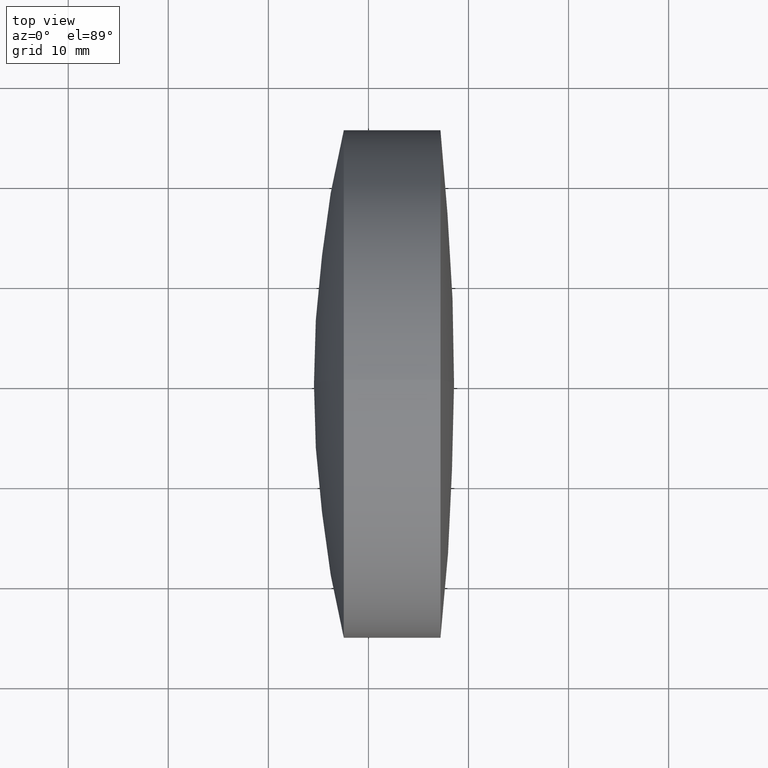
[diagram: clean part render]
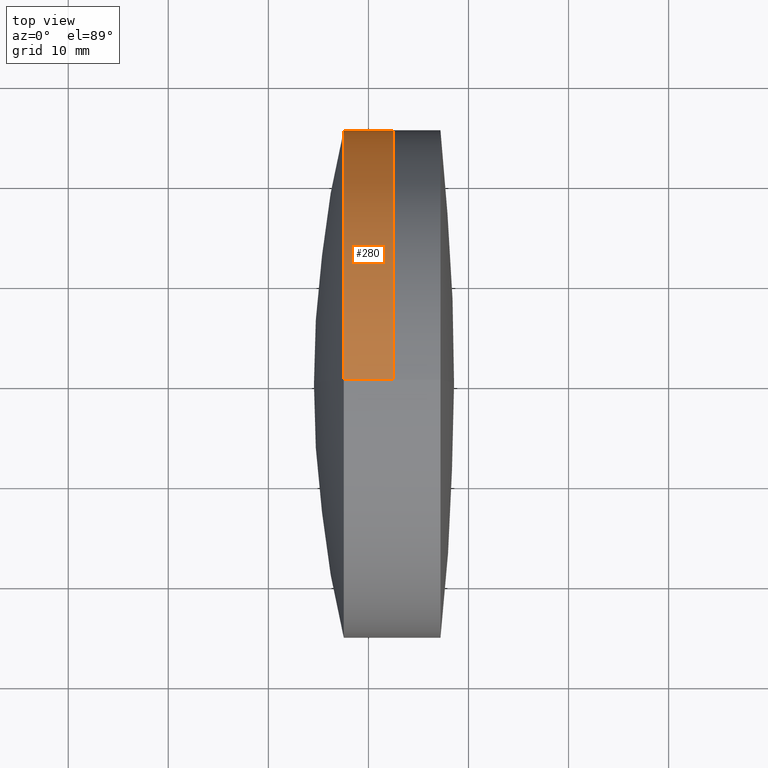
[diagram: same view with one face highlighted and labeled with its STEP entity id]
A machine part, top view. The second image highlights one B-rep face of the part: STEP entity #280.
In plain terms, the highlighted cylindrical surface (partial cylindrical patch) has radius 25.4 mm, axis along (-1, -0, -0).
Its self-contained STEP definition (entity closure, byte-faithful):
#23 = DIRECTION ( 'NONE',  ( -1.000000000000000000, -0.0000000000000000000, -0.0000000000000000000 ) ) ;
#55 = AXIS2_PLACEMENT_3D ( 'NONE', #347, #324, #190 ) ;
#60 = CARTESIAN_POINT ( 'NONE',  ( 342.4559606340186500, 0.0000000000000000000, 25.39999999999999500 ) ) ;
#68 = CARTESIAN_POINT ( 'NONE',  ( 337.5385320495342400, 3.110602869834276900E-015, -25.40000000000000600 ) ) ;
#78 = CYLINDRICAL_SURFACE ( 'NONE', #276, 25.39999999999999500 ) ;
#85 = DIRECTION ( 'NONE',  ( -1.000000000000000000, -0.0000000000000000000, -0.0000000000000000000 ) ) ;
#108 = EDGE_CURVE ( 'NONE', #251, #321, #186, .T. ) ;
#115 = EDGE_LOOP ( 'NONE', ( #200, #294, #182, #175 ) ) ;
#117 = EDGE_CURVE ( 'NONE', #156, #331, #228, .T. ) ;
#119 = CARTESIAN_POINT ( 'NONE',  ( 124.5233095260452400, 3.110602869834276500E-015, -25.39999999999999500 ) ) ;
#127 = CARTESIAN_POINT ( 'NONE',  ( 124.5233095260452400, 0.0000000000000000000, 0.0000000000000000000 ) ) ;
#128 = DIRECTION ( 'NONE',  ( 0.0000000000000000000, 0.0000000000000000000, 1.000000000000000000 ) ) ;
#147 = VECTOR ( 'NONE', #85, 1000.000000000000000 ) ;
#152 = VECTOR ( 'NONE', #239, 1000.000000000000000 ) ;
#154 = CARTESIAN_POINT ( 'NONE',  ( 342.4559606340186500, 3.110602869834276500E-015, -25.39999999999999500 ) ) ;
#156 = VERTEX_POINT ( 'NONE', #60 ) ;
#171 = CIRCLE ( 'NONE', #249, 25.39999999999999500 ) ;
#175 = ORIENTED_EDGE ( 'NONE', *, *, #117, .F. ) ;
#181 = CARTESIAN_POINT ( 'NONE',  ( 342.4559606340186500, 0.0000000000000000000, 0.0000000000000000000 ) ) ;
#182 = ORIENTED_EDGE ( 'NONE', *, *, #266, .F. ) ;
#185 = DIRECTION ( 'NONE',  ( -1.000000000000000000, -0.0000000000000000000, -0.0000000000000000000 ) ) ;
#186 = LINE ( 'NONE', #119, #147 ) ;
#188 = CARTESIAN_POINT ( 'NONE',  ( 337.5385320495342400, 0.0000000000000000000, 25.39999999999999900 ) ) ;
#190 = DIRECTION ( 'NONE',  ( 0.0000000000000000000, 0.0000000000000000000, 1.000000000000000000 ) ) ;
#200 = ORIENTED_EDGE ( 'NONE', *, *, #244, .T. ) ;
#222 = CIRCLE ( 'NONE', #55, 25.39999999999999500 ) ;
#228 = LINE ( 'NONE', #288, #152 ) ;
#239 = DIRECTION ( 'NONE',  ( -1.000000000000000000, -0.0000000000000000000, -0.0000000000000000000 ) ) ;
#244 = EDGE_CURVE ( 'NONE', #156, #251, #171, .T. ) ;
#249 = AXIS2_PLACEMENT_3D ( 'NONE', #181, #23, #128 ) ;
#251 = VERTEX_POINT ( 'NONE', #154 ) ;
#266 = EDGE_CURVE ( 'NONE', #331, #321, #222, .T. ) ;
#270 = DIRECTION ( 'NONE',  ( 0.0000000000000000000, 0.0000000000000000000, 1.000000000000000000 ) ) ;
#271 = FACE_OUTER_BOUND ( 'NONE', #115, .T. ) ;
#276 = AXIS2_PLACEMENT_3D ( 'NONE', #127, #185, #270 ) ;
#280 = ADVANCED_FACE ( 'NONE', ( #271 ), #78, .T. ) ;
#288 = CARTESIAN_POINT ( 'NONE',  ( 124.5233095260452400, 0.0000000000000000000, 25.39999999999999500 ) ) ;
#294 = ORIENTED_EDGE ( 'NONE', *, *, #108, .T. ) ;
#321 = VERTEX_POINT ( 'NONE', #68 ) ;
#324 = DIRECTION ( 'NONE',  ( -1.000000000000000000, -0.0000000000000000000, -0.0000000000000000000 ) ) ;
#331 = VERTEX_POINT ( 'NONE', #188 ) ;
#347 = CARTESIAN_POINT ( 'NONE',  ( 337.5385320495342400, 0.0000000000000000000, 0.0000000000000000000 ) ) ;